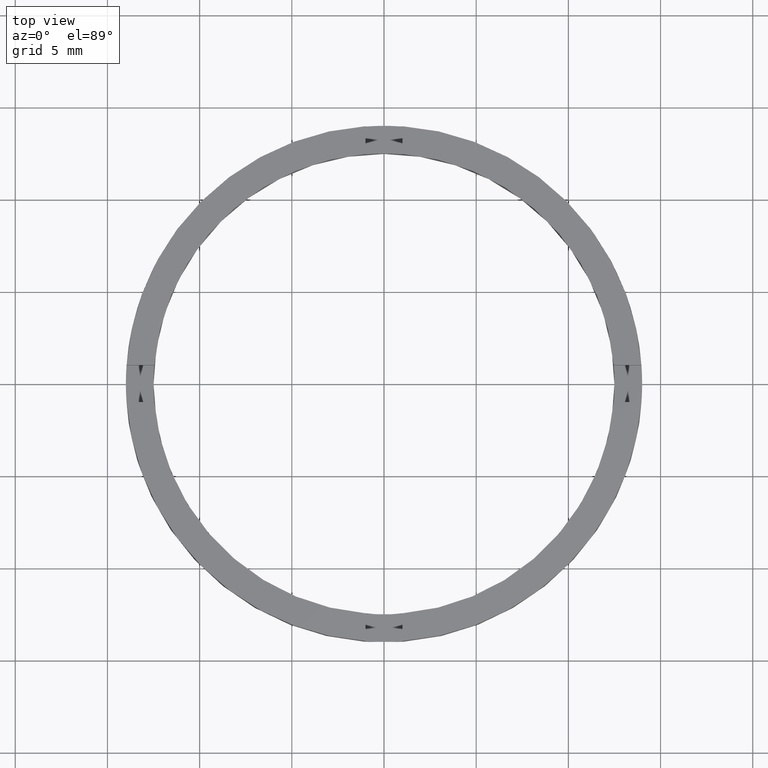
[diagram: clean part render]
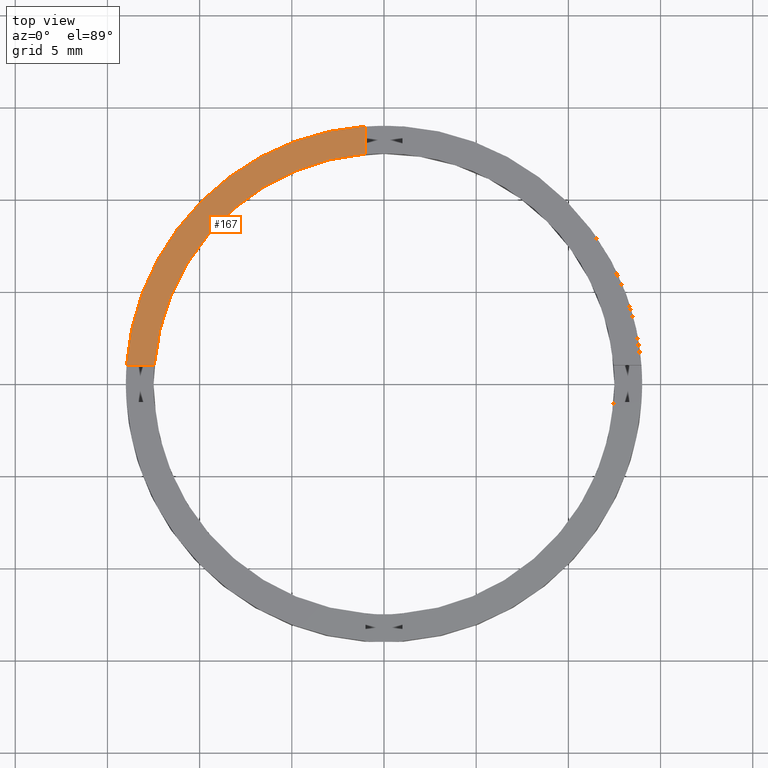
[diagram: same view with one face highlighted and labeled with its STEP entity id]
A machine part, top view. The second image highlights one B-rep face of the part: STEP entity #167.
In plain terms, the highlighted planar face has unit normal (0, 0, 1).
Its self-contained STEP definition (entity closure, byte-faithful):
#4 = ORIENTED_EDGE ( 'NONE', *, *, #599, .F. ) ;
#14 = DIRECTION ( 'NONE',  ( 0.000000000000000000, 0.000000000000000000, 1.000000000000000000 ) ) ;
#71 = CARTESIAN_POINT ( 'NONE',  ( -13.96424004376894246, 0.9999999999999772404, 2.500000000000000000 ) ) ;
#72 = DIRECTION ( 'NONE',  ( 0.000000000000000000, 0.000000000000000000, 1.000000000000000000 ) ) ;
#140 = ORIENTED_EDGE ( 'NONE', *, *, #628, .F. ) ;
#144 = VERTEX_POINT ( 'NONE', #71 ) ;
#157 = VECTOR ( 'NONE', #622, 1000.000000000000000 ) ;
#166 = DIRECTION ( 'NONE',  ( 1.000000000000000000, 0.000000000000000000, 0.000000000000000000 ) ) ;
#167 = ADVANCED_FACE ( 'NONE', ( #477 ), #574, .T. ) ;
#178 = AXIS2_PLACEMENT_3D ( 'NONE', #513, #14, #302 ) ;
#184 = VERTEX_POINT ( 'NONE', #632 ) ;
#196 = LINE ( 'NONE', #304, #157 ) ;
#247 = CARTESIAN_POINT ( 'NONE',  ( 0.000000000000000000, 0.000000000000000000, 2.500000000000000000 ) ) ;
#297 = DIRECTION ( 'NONE',  ( 1.000000000000000000, 0.000000000000000000, -0.000000000000000000 ) ) ;
#302 = DIRECTION ( 'NONE',  ( 1.000000000000000000, 0.000000000000000000, 0.000000000000000000 ) ) ;
#304 = CARTESIAN_POINT ( 'NONE',  ( -4.000000000000185629, 0.9999999999999790168, 2.500000000000000000 ) ) ;
#420 = DIRECTION ( 'NONE',  ( -0.000000000000000000, -1.000000000000000000, -0.000000000000000000 ) ) ;
#425 = CARTESIAN_POINT ( 'NONE',  ( -1.000000000000024647, 13.96424004376894068, 2.500000000000000000 ) ) ;
#428 = ORIENTED_EDGE ( 'NONE', *, *, #447, .F. ) ;
#433 = EDGE_CURVE ( 'NONE', #664, #144, #472, .T. ) ;
#447 = EDGE_CURVE ( 'NONE', #664, #525, #728, .T. ) ;
#465 = CIRCLE ( 'NONE', #749, 12.50000000000000000 ) ;
#472 = CIRCLE ( 'NONE', #178, 14.00000000000000000 ) ;
#477 = FACE_OUTER_BOUND ( 'NONE', #723, .T. ) ;
#503 = CARTESIAN_POINT ( 'NONE',  ( 0.000000000000000000, 0.000000000000000000, 2.500000000000000000 ) ) ;
#513 = CARTESIAN_POINT ( 'NONE',  ( 0.000000000000000000, 0.000000000000000000, 2.500000000000000000 ) ) ;
#525 = VERTEX_POINT ( 'NONE', #780 ) ;
#573 = CARTESIAN_POINT ( 'NONE',  ( -1.000000000000024647, 4.000000000000000000, 2.500000000000000000 ) ) ;
#574 = PLANE ( 'NONE',  #675 ) ;
#599 = EDGE_CURVE ( 'NONE', #525, #184, #465, .T. ) ;
#615 = DIRECTION ( 'NONE',  ( 0.000000000000000000, 0.000000000000000000, 1.000000000000000000 ) ) ;
#622 = DIRECTION ( 'NONE',  ( -1.000000000000000000, -1.734723475976807094E-16, 0.000000000000000000 ) ) ;
#628 = EDGE_CURVE ( 'NONE', #184, #144, #196, .T. ) ;
#632 = CARTESIAN_POINT ( 'NONE',  ( -12.45993579437711496, 0.9999999999999774625, 2.500000000000000000 ) ) ;
#664 = VERTEX_POINT ( 'NONE', #425 ) ;
#675 = AXIS2_PLACEMENT_3D ( 'NONE', #247, #615, #297 ) ;
#708 = VECTOR ( 'NONE', #420, 1000.000000000000000 ) ;
#723 = EDGE_LOOP ( 'NONE', ( #428, #768, #140, #4 ) ) ;
#728 = LINE ( 'NONE', #573, #708 ) ;
#749 = AXIS2_PLACEMENT_3D ( 'NONE', #503, #72, #166 ) ;
#768 = ORIENTED_EDGE ( 'NONE', *, *, #433, .T. ) ;
#780 = CARTESIAN_POINT ( 'NONE',  ( -1.000000000000024647, 12.45993579437711141, 2.500000000000000000 ) ) ;